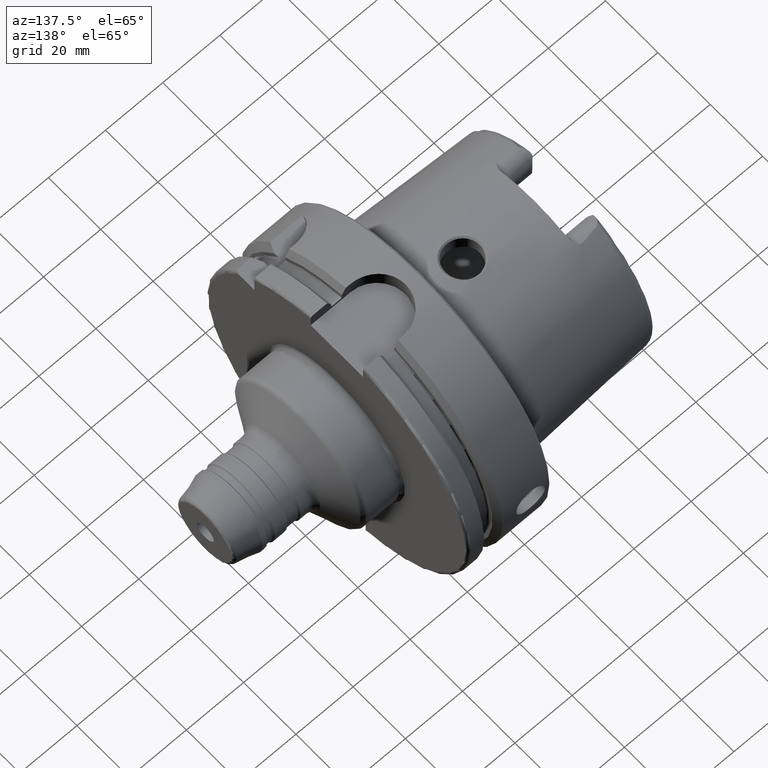
[diagram: clean part render]
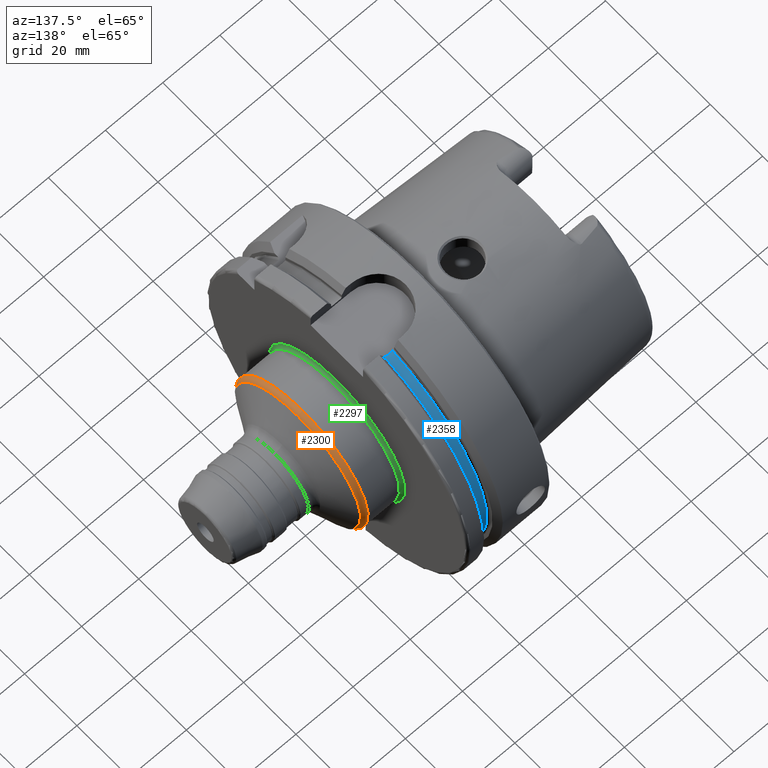
[diagram: same view with three faces highlighted in distinct colors, each labeled with its STEP entity id]
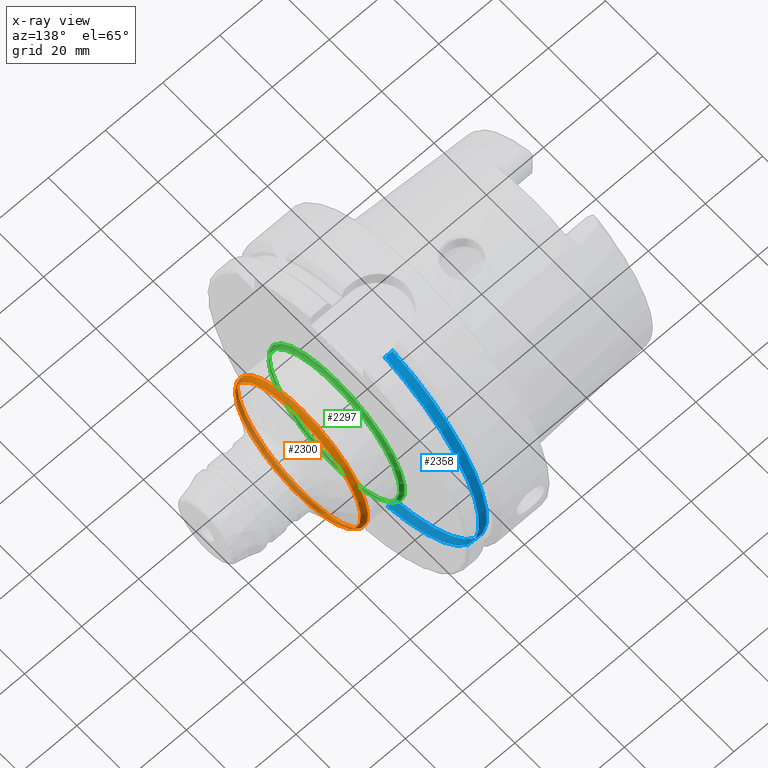
[diagram: x-ray of the same camera — body ghosted, the three highlighted faces saturated]
A machine part, auxiliary view with three faces highlighted in distinct colors.
The next image is the same camera in x-ray (body ghosted, the three faces saturated) — at least one of them is partly hidden behind the body in this view.
Their STEP definitions:

[orange] entity #2300 — the highlighted toroidal blend (fillet) surface has major radius 23 mm and minor (blend) radius 2 mm.
#451=FACE_OUTER_BOUND('',#589,.T.);
#589=EDGE_LOOP('',(#1646,#1647,#1648,#1649,#1650,#1651));
#767=CIRCLE('',#2514,25.);
#768=CIRCLE('',#2515,25.);
#772=CIRCLE('',#2521,24.);
#773=CIRCLE('',#2522,24.);
#774=CIRCLE('',#2523,2.);
#937=VERTEX_POINT('',#3653);
#938=VERTEX_POINT('',#3654);
#950=VERTEX_POINT('',#3682);
#951=VERTEX_POINT('',#3683);
#1199=EDGE_CURVE('',#937,#938,#767,.T.);
#1201=EDGE_CURVE('',#938,#937,#768,.T.);
#1213=EDGE_CURVE('',#950,#951,#772,.T.);
#1214=EDGE_CURVE('',#951,#950,#773,.T.);
#1215=EDGE_CURVE('',#950,#938,#774,.T.);
#1646=ORIENTED_EDGE('',*,*,#1213,.T.);
#1647=ORIENTED_EDGE('',*,*,#1214,.T.);
#1648=ORIENTED_EDGE('',*,*,#1215,.T.);
#1649=ORIENTED_EDGE('',*,*,#1201,.T.);
#1650=ORIENTED_EDGE('',*,*,#1199,.T.);
#1651=ORIENTED_EDGE('',*,*,#1215,.F.);
#2251=TOROIDAL_SURFACE('',#2520,23.,2.);
#2300=ADVANCED_FACE('',(#451),#2251,.T.);
#2514=AXIS2_PLACEMENT_3D('',#3655,#2928,#2929);
#2515=AXIS2_PLACEMENT_3D('',#3657,#2931,#2932);
#2520=AXIS2_PLACEMENT_3D('',#3681,#2949,#2950);
#2521=AXIS2_PLACEMENT_3D('',#3684,#2951,#2952);
#2522=AXIS2_PLACEMENT_3D('',#3685,#2953,#2954);
#2523=AXIS2_PLACEMENT_3D('',#3686,#2955,#2956);
#2928=DIRECTION('center_axis',(1.,0.,0.));
#2929=DIRECTION('ref_axis',(0.,-1.,1.83697019872103E-16));
#2931=DIRECTION('center_axis',(1.,0.,0.));
#2932=DIRECTION('ref_axis',(0.,-1.,1.83697019872103E-16));
#2949=DIRECTION('center_axis',(1.,0.,0.));
#2950=DIRECTION('ref_axis',(0.,0.,-1.));
#2951=DIRECTION('center_axis',(-1.,0.,0.));
#2952=DIRECTION('ref_axis',(0.,-1.,3.06161699786838E-17));
#2953=DIRECTION('center_axis',(-1.,0.,0.));
#2954=DIRECTION('ref_axis',(0.,-1.,3.06161699786838E-17));
#2955=DIRECTION('center_axis',(0.,-1.,-1.22464679914735E-16));
#2956=DIRECTION('ref_axis',(0.,-1.22464679914735E-16,1.));
#3653=CARTESIAN_POINT('',(40.9170962313453,-25.,-3.06161699786838E-15));
#3654=CARTESIAN_POINT('',(40.9170962313453,-3.06161699786838E-15,25.));
#3655=CARTESIAN_POINT('Origin',(40.9170962313453,0.,0.));
#3657=CARTESIAN_POINT('Origin',(40.9170962313453,0.,0.));
#3681=CARTESIAN_POINT('Origin',(40.9170962313453,0.,0.));
#3682=CARTESIAN_POINT('',(42.6491470389141,-2.93915231795365E-15,24.));
#3683=CARTESIAN_POINT('',(42.6491470389141,-24.,-2.93915231795365E-15));
#3684=CARTESIAN_POINT('Origin',(42.6491470389141,0.,-3.67394039744206E-15));
#3685=CARTESIAN_POINT('Origin',(42.6491470389141,0.,-3.67394039744206E-15));
#3686=CARTESIAN_POINT('Origin',(40.9170962313453,-2.81668763803891E-15,
23.));

[blue] entity #2358 — the highlighted cylindrical surface (partial cylindrical patch) has radius 46 mm, axis along (1, 0, 0).
#240=LINE('',#4800,#352);
#254=LINE('',#4929,#366);
#352=VECTOR('',#3223,10.);
#366=VECTOR('',#3283,10.);
#413=CYLINDRICAL_SURFACE('',#2649,46.);
#509=FACE_OUTER_BOUND('',#653,.T.);
#653=EDGE_LOOP('',(#1981,#1982,#1983,#1984));
#836=CIRCLE('',#2648,46.);
#837=CIRCLE('',#2650,46.);
#1078=VERTEX_POINT('',#4788);
#1079=VERTEX_POINT('',#4799);
#1098=VERTEX_POINT('',#4914);
#1099=VERTEX_POINT('',#4927);
#1387=EDGE_CURVE('',#1079,#1078,#240,.T.);
#1418=EDGE_CURVE('',#1079,#1098,#836,.T.);
#1420=EDGE_CURVE('',#1078,#1099,#837,.T.);
#1421=EDGE_CURVE('',#1099,#1098,#254,.T.);
#1981=ORIENTED_EDGE('',*,*,#1387,.T.);
#1982=ORIENTED_EDGE('',*,*,#1420,.T.);
#1983=ORIENTED_EDGE('',*,*,#1421,.T.);
#1984=ORIENTED_EDGE('',*,*,#1418,.F.);
#2358=ADVANCED_FACE('',(#509),#413,.T.);
#2648=AXIS2_PLACEMENT_3D('',#4915,#3277,#3278);
#2649=AXIS2_PLACEMENT_3D('',#4926,#3279,#3280);
#2650=AXIS2_PLACEMENT_3D('',#4928,#3281,#3282);
#3223=DIRECTION('',(-1.,0.,0.));
#3277=DIRECTION('center_axis',(1.,0.,0.));
#3278=DIRECTION('ref_axis',(0.,0.,-1.));
#3279=DIRECTION('center_axis',(1.,0.,0.));
#3280=DIRECTION('ref_axis',(0.,1.,0.));
#3281=DIRECTION('center_axis',(1.,0.,0.));
#3282=DIRECTION('ref_axis',(0.,0.,-1.));
#3283=DIRECTION('',(1.,0.,0.));
#4788=CARTESIAN_POINT('',(18.625,11.,-44.6654228682546));
#4799=CARTESIAN_POINT('',(21.375,11.,-44.6654228682546));
#4800=CARTESIAN_POINT('',(20.,11.,-44.6654228682546));
#4914=CARTESIAN_POINT('',(21.375,10.,44.8998886412873));
#4915=CARTESIAN_POINT('Origin',(21.375,0.,0.));
#4926=CARTESIAN_POINT('Origin',(20.,0.,0.));
#4927=CARTESIAN_POINT('',(18.625,10.,44.8998886412873));
#4928=CARTESIAN_POINT('Origin',(18.625,0.,0.));
#4929=CARTESIAN_POINT('',(20.,10.,44.8998886412873));

[green] entity #2297 — the highlighted toroidal blend (fillet) surface has major radius 26 mm and minor (blend) radius 1 mm.
#448=FACE_OUTER_BOUND('',#585,.T.);
#585=EDGE_LOOP('',(#1623,#1624,#1625,#1626,#1627));
#763=CIRCLE('',#2509,25.);
#764=CIRCLE('',#2510,1.);
#765=CIRCLE('',#2511,26.);
#766=CIRCLE('',#2512,25.);
#934=VERTEX_POINT('',#3645);
#935=VERTEX_POINT('',#3646);
#936=VERTEX_POINT('',#3648);
#1195=EDGE_CURVE('',#934,#935,#763,.T.);
#1196=EDGE_CURVE('',#935,#936,#764,.T.);
#1197=EDGE_CURVE('',#936,#936,#765,.T.);
#1198=EDGE_CURVE('',#935,#934,#766,.T.);
#1623=ORIENTED_EDGE('',*,*,#1195,.T.);
#1624=ORIENTED_EDGE('',*,*,#1196,.T.);
#1625=ORIENTED_EDGE('',*,*,#1197,.T.);
#1626=ORIENTED_EDGE('',*,*,#1196,.F.);
#1627=ORIENTED_EDGE('',*,*,#1198,.T.);
#2250=TOROIDAL_SURFACE('',#2508,26.,1.);
#2297=ADVANCED_FACE('',(#448),#2250,.F.);
#2508=AXIS2_PLACEMENT_3D('',#3644,#2916,#2917);
#2509=AXIS2_PLACEMENT_3D('',#3647,#2918,#2919);
#2510=AXIS2_PLACEMENT_3D('',#3649,#2920,#2921);
#2511=AXIS2_PLACEMENT_3D('',#3650,#2922,#2923);
#2512=AXIS2_PLACEMENT_3D('',#3651,#2924,#2925);
#2916=DIRECTION('center_axis',(-1.,0.,0.));
#2917=DIRECTION('ref_axis',(0.,0.,1.));
#2918=DIRECTION('center_axis',(-1.,0.,0.));
#2919=DIRECTION('ref_axis',(0.,-1.,-1.22464679914735E-16));
#2920=DIRECTION('center_axis',(0.,-1.,1.22464679914735E-16));
#2921=DIRECTION('ref_axis',(0.,-1.22464679914735E-16,-1.));
#2922=DIRECTION('center_axis',(1.,0.,0.));
#2923=DIRECTION('ref_axis',(0.,-1.,-1.22464679914735E-16));
#2924=DIRECTION('center_axis',(-1.,0.,0.));
#2925=DIRECTION('ref_axis',(0.,-1.,-1.22464679914735E-16));
#3644=CARTESIAN_POINT('Origin',(30.,0.,0.));
#3645=CARTESIAN_POINT('',(30.,-25.,-3.06161699786838E-15));
#3646=CARTESIAN_POINT('',(30.,-3.06161699786838E-15,-25.));
#3647=CARTESIAN_POINT('Origin',(30.,0.,0.));
#3648=CARTESIAN_POINT('',(29.,-3.18408167778312E-15,-26.));
#3649=CARTESIAN_POINT('Origin',(30.,-3.18408167778312E-15,-26.));
#3650=CARTESIAN_POINT('Origin',(29.,0.,0.));
#3651=CARTESIAN_POINT('Origin',(30.,0.,0.));